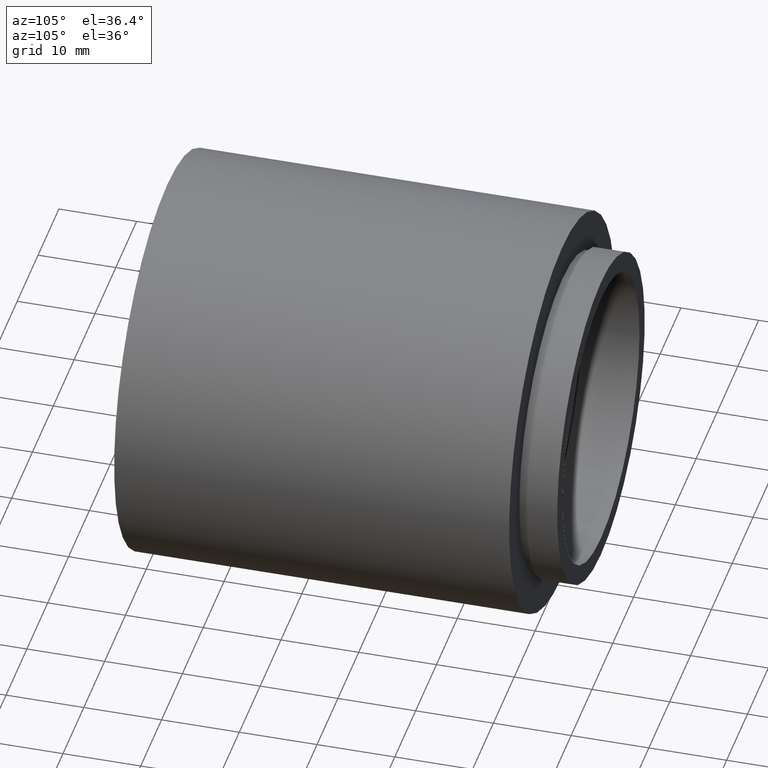
[diagram: clean part render]
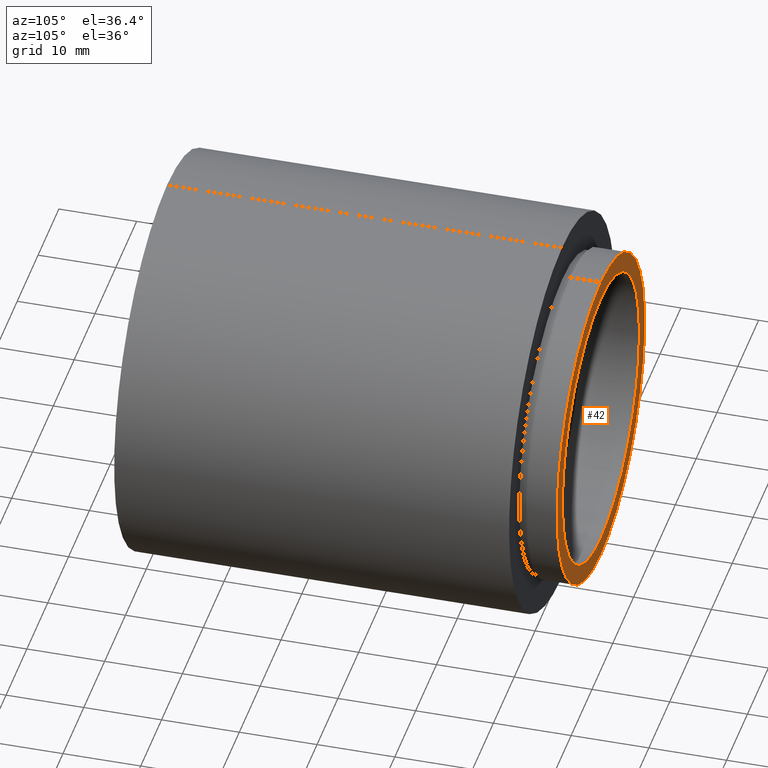
[diagram: same view with one face highlighted and labeled with its STEP entity id]
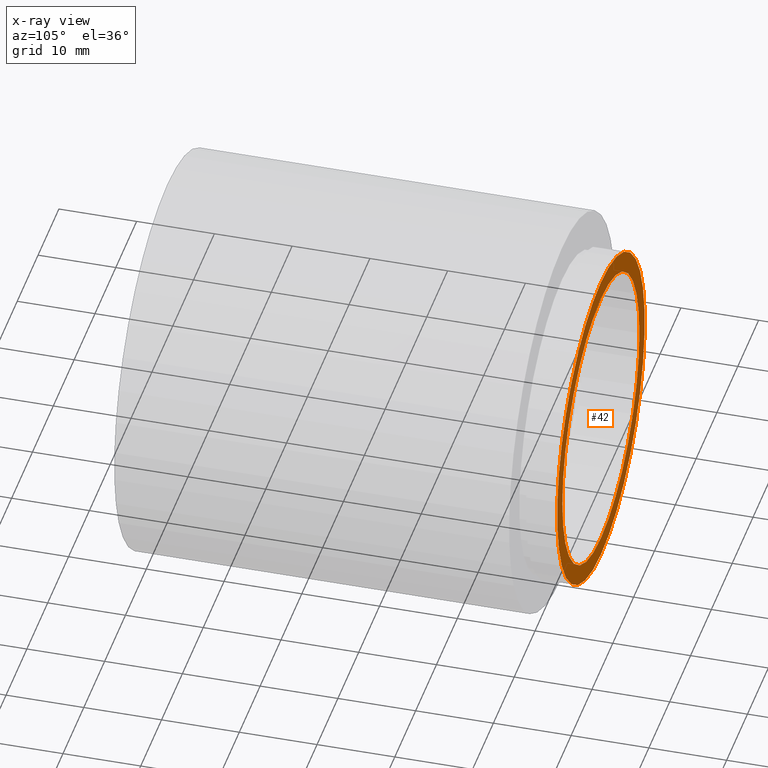
[diagram: x-ray of the same camera — body ghosted, the highlighted face saturated]
A machine part, auxiliary view. The second image highlights one B-rep face of the part: STEP entity #42.
The next image is the same camera in x-ray: the body ghosted, the highlighted face saturated — about 0% of this face is hidden behind the body in this view.
In plain terms, the highlighted planar face has unit normal (0, -1, 0).
Its self-contained STEP definition (entity closure, byte-faithful):
#13 = DIRECTION ( 'NONE',  ( 0.0000000000000000000, -0.0000000000000000000, -1.000000000000000000 ) ) ;
#16 = CARTESIAN_POINT ( 'NONE',  ( 0.0000000000000000000, 55.79999999999999000, 0.0000000000000000000 ) ) ;
#35 = EDGE_CURVE ( 'NONE', #565, #611, #602, .T. ) ;
#42 = ADVANCED_FACE ( 'NONE', ( #293, #279 ), #504, .F. ) ;
#46 = DIRECTION ( 'NONE',  ( -0.0000000000000000000, 1.000000000000000000, -0.0000000000000000000 ) ) ;
#73 = DIRECTION ( 'NONE',  ( -0.0000000000000000000, 1.000000000000000000, -0.0000000000000000000 ) ) ;
#77 = DIRECTION ( 'NONE',  ( 0.0000000000000000000, 0.0000000000000000000, 1.000000000000000000 ) ) ;
#89 = CARTESIAN_POINT ( 'NONE',  ( 0.0000000000000000000, 55.79999999999999000, 0.0000000000000000000 ) ) ;
#100 = EDGE_LOOP ( 'NONE', ( #514, #361 ) ) ;
#101 = CARTESIAN_POINT ( 'NONE',  ( 0.0000000000000000000, 55.79999999999999000, 0.0000000000000000000 ) ) ;
#151 = DIRECTION ( 'NONE',  ( 0.0000000000000000000, 0.0000000000000000000, 1.000000000000000000 ) ) ;
#165 = AXIS2_PLACEMENT_3D ( 'NONE', #101, #202, #151 ) ;
#186 = AXIS2_PLACEMENT_3D ( 'NONE', #89, #203, #374 ) ;
#202 = DIRECTION ( 'NONE',  ( -0.0000000000000000000, 1.000000000000000000, -0.0000000000000000000 ) ) ;
#203 = DIRECTION ( 'NONE',  ( -0.0000000000000000000, 1.000000000000000000, -0.0000000000000000000 ) ) ;
#208 = CARTESIAN_POINT ( 'NONE',  ( 2.571758278209443600E-015, 55.79999999999999000, -21.00000000000001400 ) ) ;
#226 = CARTESIAN_POINT ( 'NONE',  ( 18.50000000000001100, 55.79999999999998300, 0.0000000000000000000 ) ) ;
#234 = DIRECTION ( 'NONE',  ( 0.0000000000000000000, -1.000000000000000000, 0.0000000000000000000 ) ) ;
#242 = CIRCLE ( 'NONE', #186, 21.00000000000001400 ) ;
#279 = FACE_OUTER_BOUND ( 'NONE', #100, .T. ) ;
#287 = VERTEX_POINT ( 'NONE', #578 ) ;
#293 = FACE_BOUND ( 'NONE', #385, .T. ) ;
#297 = AXIS2_PLACEMENT_3D ( 'NONE', #226, #234, #13 ) ;
#304 = CARTESIAN_POINT ( 'NONE',  ( 0.0000000000000000000, 55.79999999999999000, 0.0000000000000000000 ) ) ;
#306 = ORIENTED_EDGE ( 'NONE', *, *, #386, .F. ) ;
#319 = EDGE_CURVE ( 'NONE', #287, #450, #488, .T. ) ;
#321 = CARTESIAN_POINT ( 'NONE',  ( 2.265596578422604600E-015, 55.79999999999999000, -18.50000000000001100 ) ) ;
#361 = ORIENTED_EDGE ( 'NONE', *, *, #535, .T. ) ;
#374 = DIRECTION ( 'NONE',  ( 0.0000000000000000000, 0.0000000000000000000, 1.000000000000000000 ) ) ;
#385 = EDGE_LOOP ( 'NONE', ( #457, #306 ) ) ;
#386 = EDGE_CURVE ( 'NONE', #611, #565, #586, .T. ) ;
#399 = DIRECTION ( 'NONE',  ( 0.0000000000000000000, 0.0000000000000000000, 1.000000000000000000 ) ) ;
#421 = CARTESIAN_POINT ( 'NONE',  ( 0.0000000000000000000, 55.79999999999999000, 18.50000000000001100 ) ) ;
#432 = AXIS2_PLACEMENT_3D ( 'NONE', #304, #46, #399 ) ;
#450 = VERTEX_POINT ( 'NONE', #208 ) ;
#457 = ORIENTED_EDGE ( 'NONE', *, *, #35, .F. ) ;
#488 = CIRCLE ( 'NONE', #165, 21.00000000000001400 ) ;
#504 = PLANE ( 'NONE',  #297 ) ;
#514 = ORIENTED_EDGE ( 'NONE', *, *, #319, .T. ) ;
#535 = EDGE_CURVE ( 'NONE', #450, #287, #242, .T. ) ;
#565 = VERTEX_POINT ( 'NONE', #421 ) ;
#578 = CARTESIAN_POINT ( 'NONE',  ( 0.0000000000000000000, 55.79999999999999000, 21.00000000000001400 ) ) ;
#586 = CIRCLE ( 'NONE', #432, 18.50000000000001100 ) ;
#602 = CIRCLE ( 'NONE', #605, 18.50000000000001100 ) ;
#605 = AXIS2_PLACEMENT_3D ( 'NONE', #16, #73, #77 ) ;
#611 = VERTEX_POINT ( 'NONE', #321 ) ;